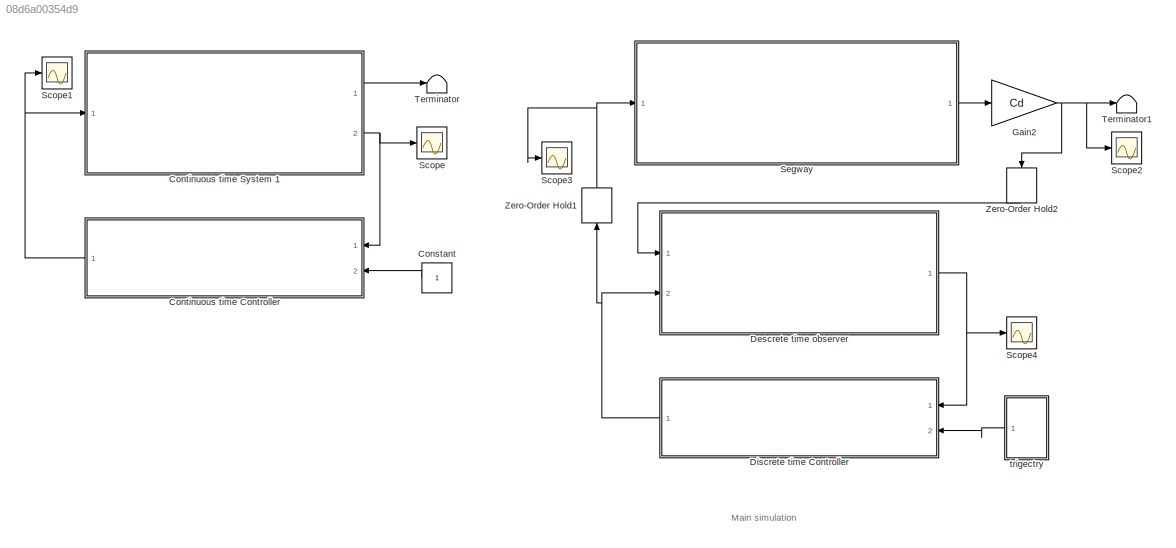
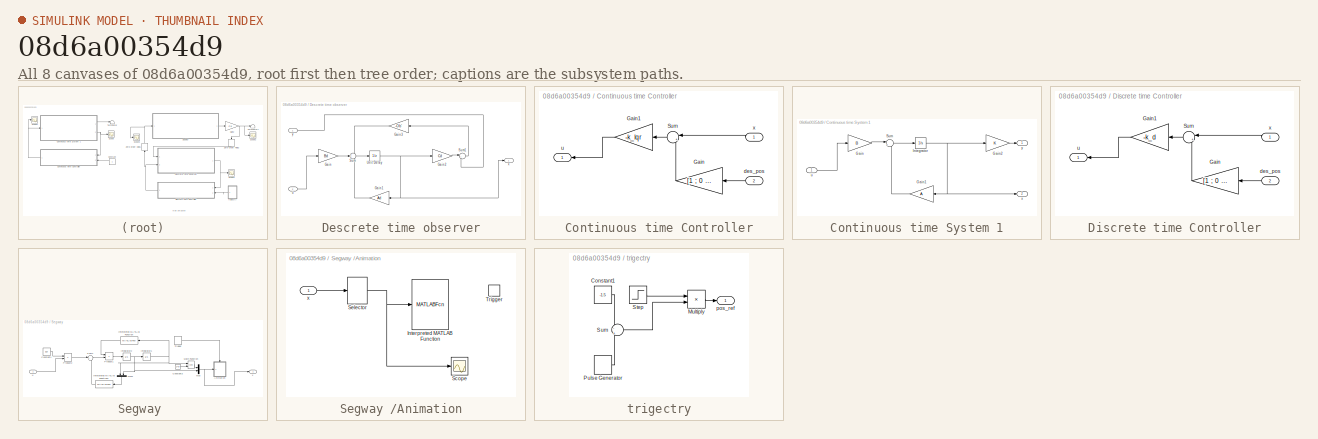
[diagram: thumbnail index - all 8 canvases of the model, root first then tree order]
MODEL slx_08d6a00354d9
KIND model
CONFIG AbsTol = auto
CONFIG EnableMultiTasking = off
CONFIG FixedStep = auto
CONFIG MaxStep = auto
CONFIG MinStep = auto
CONFIG RelTol = 1e-3
CONFIG SampleTimeConstraint = Unconstrained
CONFIG Solver = VariableStepAuto
CONFIG SolverName = VariableStepAuto
CONFIG StartTime = 0.0
CONFIG StopTime = 20
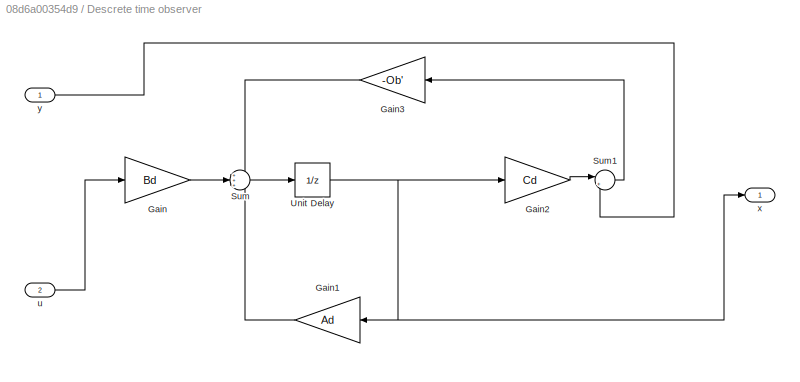
BLOCK [SubSystem]  Descrete time observer 
  Ports = [2, 1]
  RequestExecContextInheritance = off
BLOCK [Gain]  Descrete time observer /Gain
  Gain = Bd
  Multiplication = Matrix(K*u)
  OutDataTypeStr = Inherit: Inherit via internal rule
  ParamDataTypeStr = Inherit: Inherit via internal rule
  SaturateOnIntegerOverflow = off
BLOCK [Gain]  Descrete time observer /Gain1
  Gain = Ad
  Multiplication = Matrix(K*u)
  OutDataTypeStr = Inherit: Inherit via internal rule
  ParamDataTypeStr = Inherit: Inherit via internal rule
  SaturateOnIntegerOverflow = off
BLOCK [Gain]  Descrete time observer /Gain2
  Gain = Cd
  Multiplication = Matrix(K*u)
  OutDataTypeStr = Inherit: Inherit via internal rule
  ParamDataTypeStr = Inherit: Inherit via internal rule
  SaturateOnIntegerOverflow = off
BLOCK [Gain]  Descrete time observer /Gain3
  Gain = -Ob'
  Multiplication = Matrix(K*u)
  OutDataTypeStr = Inherit: Inherit via internal rule
  ParamDataTypeStr = Inherit: Inherit via internal rule
  SaturateOnIntegerOverflow = off
BLOCK [Sum]  Descrete time observer /Sum
  IconShape = round
  InputSameDT = off
  Inputs = +++
  OutDataTypeStr = Inherit: Inherit via internal rule
  Ports = [3, 1]
  SaturateOnIntegerOverflow = off
BLOCK [Sum]  Descrete time observer /Sum1
  IconShape = round
  InputSameDT = off
  Inputs = |+-
  OutDataTypeStr = Inherit: Inherit via internal rule
  Ports = [2, 1]
  SaturateOnIntegerOverflow = off
BLOCK [UnitDelay]  Descrete time observer /Unit Delay
  InitialCondition = x0*0
  InputProcessing = Elements as channels (sample based)
  SampleTime = -1
BLOCK [Inport]  Descrete time observer /u
  IconDisplay = Port number
  Port = 2
BLOCK [Outport]  Descrete time observer /x
  IconDisplay = Port number
BLOCK [Inport]  Descrete time observer /y
  IconDisplay = Port number
BLOCK [Constant] Constant
BLOCK [SubSystem] Continuous time Controller
  Ports = [2, 1]
  RequestExecContextInheritance = off
BLOCK [Gain] Continuous time Controller/Gain
  Gain = [1 ; 0 ; 0 ; 0 ]
  OutDataTypeStr = Inherit: Inherit via internal rule
  ParamDataTypeStr = Inherit: Inherit via internal rule
  SaturateOnIntegerOverflow = off
BLOCK [Gain] Continuous time Controller/Gain1
  Gain = -k_lqr
  Multiplication = Matrix(K*u)
  OutDataTypeStr = Inherit: Inherit via internal rule
  ParamDataTypeStr = Inherit: Inherit via internal rule
  SaturateOnIntegerOverflow = off
BLOCK [Sum] Continuous time Controller/Sum
  IconShape = round
  InputSameDT = off
  Inputs = |+-
  OutDataTypeStr = Inherit: Inherit via internal rule
  Ports = [2, 1]
  SaturateOnIntegerOverflow = off
BLOCK [Inport] Continuous time Controller/des_pos
  IconDisplay = Port number
  Port = 2
BLOCK [Outport] Continuous time Controller/u
  IconDisplay = Port number
BLOCK [Inport] Continuous time Controller/x
  IconDisplay = Port number
BLOCK [SubSystem] Continuous time System 1
  Ports = [1, 2]
  RequestExecContextInheritance = off
BLOCK [Gain] Continuous time System 1/Gain
  Gain = B
  Multiplication = Matrix(K*u)
  OutDataTypeStr = Inherit: Inherit via internal rule
  ParamDataTypeStr = Inherit: Inherit via internal rule
  SaturateOnIntegerOverflow = off
BLOCK [Gain] Continuous time System 1/Gain1
  Gain = A
  Multiplication = Matrix(K*u)
  OutDataTypeStr = Inherit: Inherit via internal rule
  ParamDataTypeStr = Inherit: Inherit via internal rule
  SaturateOnIntegerOverflow = off
BLOCK [Gain] Continuous time System 1/Gain2
  OutDataTypeStr = Inherit: Inherit via internal rule
  ParamDataTypeStr = Inherit: Inherit via internal rule
  SaturateOnIntegerOverflow = off
BLOCK [Integrator] Continuous time System 1/Integrator
  InitialCondition = x0
  Ports = [1, 1]
BLOCK [Sum] Continuous time System 1/Sum
  IconShape = round
  InputSameDT = off
  Inputs = |++
  OutDataTypeStr = Inherit: Inherit via internal rule
  Ports = [2, 1]
  SaturateOnIntegerOverflow = off
BLOCK [Inport] Continuous time System 1/u
  IconDisplay = Port number
BLOCK [Outport] Continuous time System 1/x
  IconDisplay = Port number
  Port = 2
BLOCK [Outport] Continuous time System 1/y
  IconDisplay = Port number
BLOCK [SubSystem] Discrete time Controller
  Ports = [2, 1]
  RequestExecContextInheritance = off
BLOCK [Gain] Discrete time Controller/Gain
  Gain = [1 ; 0 ; 0 ; 0 ]
  OutDataTypeStr = Inherit: Inherit via internal rule
  ParamDataTypeStr = Inherit: Inherit via internal rule
  SaturateOnIntegerOverflow = off
BLOCK [Gain] Discrete time Controller/Gain1
  Gain = -k_d
  Multiplication = Matrix(K*u)
  OutDataTypeStr = Inherit: Inherit via internal rule
  ParamDataTypeStr = Inherit: Inherit via internal rule
  SaturateOnIntegerOverflow = off
BLOCK [Sum] Discrete time Controller/Sum
  IconShape = round
  InputSameDT = off
  Inputs = |+-
  OutDataTypeStr = Inherit: Inherit via internal rule
  Ports = [2, 1]
  SaturateOnIntegerOverflow = off
BLOCK [Inport] Discrete time Controller/des_pos
  IconDisplay = Port number
  Port = 2
BLOCK [Outport] Discrete time Controller/u
  IconDisplay = Port number
BLOCK [Inport] Discrete time Controller/x
  IconDisplay = Port number
BLOCK [Gain] Gain2
  Gain = Cd
  Multiplication = Matrix(K*u)
  OutDataTypeStr = Inherit: Inherit via internal rule
  ParamDataTypeStr = Inherit: Inherit via internal rule
  SaturateOnIntegerOverflow = off
BLOCK [Scope] Scope
  Floating = off
  NumInputPorts = 1
  Ports = [1]
  ScopeSpecificationString = Simulink.scopes.TimeScopeBlockCfg('CurrentConfiguration', extmgr.ConfigurationSet(extmgr.Configuration('Core','General UI',true),extmgr.Configuration('Core','Source UI',true),extmgr.Configuration('Sources','WiredSimulink',true),extmgr.Configuration('Visuals','Time Domain',true,'SerializedDisplays',{struct('MinYLimReal','-0.87219','MaxYLimReal','1.20802','YLabelReal','','MinYLimMag','0.00000','MaxY...<+1468ch>
BLOCK [Scope] Scope1
  Floating = off
  NumInputPorts = 1
  Ports = [1]
  ScopeSpecificationString = Simulink.scopes.TimeScopeBlockCfg('CurrentConfiguration', extmgr.ConfigurationSet(extmgr.Configuration('Core','General UI',true),extmgr.Configuration('Core','Source UI',true),extmgr.Configuration('Sources','WiredSimulink',true,'DataLoggingVariableName','ScopeData1'),extmgr.Configuration('Visuals','Time Domain',true,'SerializedDisplays',{struct('MinYLimReal','-26.94465','MaxYLimReal','9.08468','YLa...<+1416ch>
BLOCK [Scope] Scope2
  Floating = off
  NumInputPorts = 1
  Ports = [1]
  ScopeSpecificationString = Simulink.scopes.TimeScopeBlockCfg('CurrentConfiguration', extmgr.ConfigurationSet(extmgr.Configuration('Core','General UI',true),extmgr.Configuration('Core','Source UI',true),extmgr.Configuration('Sources','WiredSimulink',true,'DataLoggingVariableName','ScopeData1'),extmgr.Configuration('Visuals','Time Domain',true,'SerializedDisplays',{struct('MinYLimReal','-1.34232','MaxYLimReal','2.46951','YLab...<+1390ch>
BLOCK [Scope] Scope3
  Floating = off
  NumInputPorts = 1
  Ports = [1]
  ScopeSpecificationString = Simulink.scopes.TimeScopeBlockCfg('CurrentConfiguration', extmgr.ConfigurationSet(extmgr.Configuration('Core','General UI',true),extmgr.Configuration('Core','Source UI',true),extmgr.Configuration('Sources','WiredSimulink',true,'DataLoggingVariableName','ScopeData2'),extmgr.Configuration('Visuals','Time Domain',true,'SerializedDisplays',{struct('MinYLimReal','-13.4731','MaxYLimReal','11.69984','YLa...<+1403ch>
BLOCK [Scope] Scope4
  Floating = off
  NumInputPorts = 1
  Ports = [1]
  ScopeSpecificationString = Simulink.scopes.TimeScopeBlockCfg('CurrentConfiguration', extmgr.ConfigurationSet(extmgr.Configuration('Core','General UI',true),extmgr.Configuration('Core','Source UI',true),extmgr.Configuration('Sources','WiredSimulink',true,'DataLoggingVariableName','ScopeData3'),extmgr.Configuration('Visuals','Time Domain',true,'SerializedDisplays',{struct('MinYLimReal','-2.05109','MaxYLimReal','2.54824','YLab...<+1498ch>
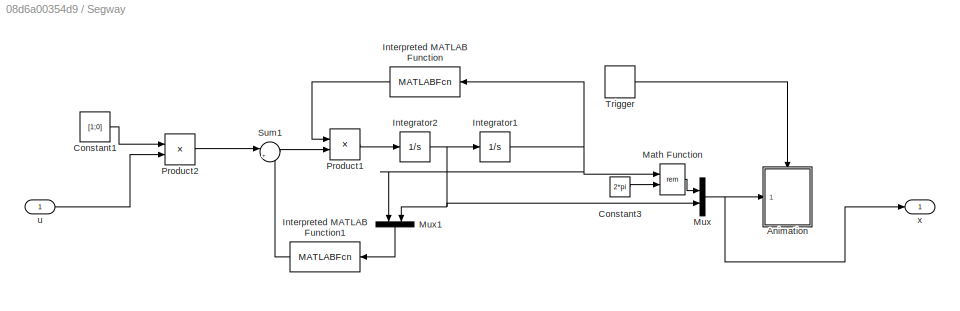
BLOCK [SubSystem] Segway 
  Ports = [1, 1]
  RequestExecContextInheritance = off
BLOCK [SubSystem] Segway /Animation
  Ports = [1, 0, 0, 1]
  RequestExecContextInheritance = off
BLOCK [MATLABFcn] Segway /Animation/Interpreted MATLAB Function
  MATLABFcn = Segway_model
  OutputDimensions = 0
  Ports = [1]
BLOCK [Scope] Segway /Animation/Scope
  Floating = off
  NumInputPorts = 1
  Ports = [1]
  ScopeSpecificationString = C++SS(StrPVP('Location','[1067, 477, 1540, 1054]'),StrPVP('Open','off'),MxPVP('AxesTitles',53,'struct(''axes1'',''%<SignalLabel>'')'),MxPVP('ScopeGraphics',56,'struct(''FigureColor'',''[0.501960784313725 0.501960784313725 0.501960784313725]'',''AxesColor'',''[0 0 0]'',''AxesTickColor'',''[1 1 1]'',''LineColors'',''[1 1 0;1 0 1;0 1 1;1 0 0;0 1 0;0 0 1]'',''LineStyles'',''-|-|-|-|-|-'',''LineWidths'...<+313ch>
BLOCK [Selector] Segway /Animation/Selector
  IndexOptions = Index vector (dialog)
  Indices = [1:2]
  InputPortWidth = 4
  OutputSizes = 1
  Ports = [1, 1]
BLOCK [TriggerPort] Segway /Animation/Trigger
  PortDimensions = 1
  Ports = []
  StatesWhenEnabling = held
  VariantControl = (inherit)
BLOCK [Inport] Segway /Animation/x
  IconDisplay = Port number
BLOCK [Constant] Segway /Constant1
  Value = [1;0]
BLOCK [Constant] Segway /Constant3
  Value = 2*pi
BLOCK [Integrator] Segway /Integrator1
  InitialCondition = x0(1:2)
  Ports = [1, 1]
BLOCK [Integrator] Segway /Integrator2
  InitialCondition = x0(3:4)
  Ports = [1, 1]
BLOCK [MATLABFcn] Segway /Interpreted MATLAB Function
  MATLABFcn = [ 1/(mw + mp - mp*cos(u(2))^2),        cos(u(2))/(L*(mw + mp - mp*cos(u(2))^2)); cos(u(2))/(L*(mw + mp - mp*cos(u(2))^2)), (mw + mp)/(L^2*mp*(mw + mp - mp*cos(u(2))^2))]
  Output1D = off
  Ports = [1, 1]
BLOCK [MATLABFcn] Segway /Interpreted MATLAB Function1
  MATLABFcn = [d1.*u(3)+L.*u(4).^2.*mp.*sin(u(2));d2.*u(4)-L.*g.*mp.*sin(u(2))]
  Ports = [1, 1]
BLOCK [Math] Segway /Math Function
  Operator = rem
  Ports = [2, 1]
BLOCK [Mux] Segway /Mux
  DisplayOption = bar
  Inputs = 2
  Ports = [2, 1]
BLOCK [Mux] Segway /Mux1
  DisplayOption = bar
  Inputs = 2
  Ports = [2, 1]
BLOCK [Product] Segway /Product1
  InputSameDT = off
  Multiplication = Matrix(*)
  OutDataTypeStr = Inherit: Inherit via internal rule
  Ports = [2, 1]
  RndMeth = Floor
  SaturateOnIntegerOverflow = off
BLOCK [Product] Segway /Product2
  InputSameDT = off
  Multiplication = Matrix(*)
  OutDataTypeStr = Inherit: Inherit via internal rule
  Ports = [2, 1]
  RndMeth = Floor
  SaturateOnIntegerOverflow = off
BLOCK [Sum] Segway /Sum1
  IconShape = round
  InputSameDT = off
  Inputs = |+-
  OutDataTypeStr = Inherit: Inherit via internal rule
  Ports = [2, 1]
  SaturateOnIntegerOverflow = off
BLOCK [DiscretePulseGenerator] Segway /Trigger
  Period = 0.1
  Ports = [0, 1]
  PulseType = Time based
  PulseWidth = 50
BLOCK [Inport] Segway /u
  IconDisplay = Port number
BLOCK [Outport] Segway /x
  IconDisplay = Port number
BLOCK [Terminator] Terminator
BLOCK [Terminator] Terminator1
BLOCK [ZeroOrderHold] Zero-Order Hold1
  SampleTime = Ts
BLOCK [ZeroOrderHold] Zero-Order Hold2
  SampleTime = Ts
BLOCK [SubSystem] trigectry
  Ports = [0, 1]
  RequestExecContextInheritance = off
BLOCK [Constant] trigectry/Constant1
  Value = -1.5
BLOCK [Product] trigectry/Multiply
  InputSameDT = off
  OutDataTypeStr = Inherit: Inherit via internal rule
  Ports = [2, 1]
  RndMeth = Floor
  SaturateOnIntegerOverflow = off
BLOCK [DiscretePulseGenerator] trigectry/Pulse Generator
  Period = 5
  Ports = [0, 1]
  PulseType = Time based
  PulseWidth = 25
BLOCK [Step] trigectry/Step
  SampleTime = 0
  Time = 5
BLOCK [Sum] trigectry/Sum
  IconShape = round
  InputSameDT = off
  Inputs = -|+
  OutDataTypeStr = Inherit: Inherit via internal rule
  Ports = [2, 1]
  SaturateOnIntegerOverflow = off
BLOCK [Outport] trigectry/pos_ref
  IconDisplay = Port number
ANNOTATION (root): Main simulation
LINE  Descrete time observer /Gain1:1 ->  Descrete time observer /Sum:3
LINE  Descrete time observer /Gain2:1 ->  Descrete time observer /Sum1:1
LINE  Descrete time observer /Gain3:1 ->  Descrete time observer /Sum:1
LINE  Descrete time observer /Gain:1 ->  Descrete time observer /Sum:2
LINE  Descrete time observer /Sum1:1 ->  Descrete time observer /Gain3:1
LINE  Descrete time observer /Sum:1 ->  Descrete time observer /Unit Delay:1
NET  Descrete time observer /Unit Delay:1 ->  Descrete time observer /Gain1:1,  Descrete time observer /Gain2:1,  Descrete time observer /x:1
LINE  Descrete time observer /u:1 ->  Descrete time observer /Gain:1
LINE  Descrete time observer /y:1 ->  Descrete time observer /Sum1:2
NET  Descrete time observer :1 -> Discrete time Controller:1, Scope4:1
LINE Constant:1 -> Continuous time Controller:2
LINE Continuous time Controller/Gain1:1 -> Continuous time Controller/u:1
LINE Continuous time Controller/Gain:1 -> Continuous time Controller/Sum:2
LINE Continuous time Controller/Sum:1 -> Continuous time Controller/Gain1:1
LINE Continuous time Controller/des_pos:1 -> Continuous time Controller/Gain:1
LINE Continuous time Controller/x:1 -> Continuous time Controller/Sum:1
NET Continuous time Controller:1 -> Continuous time System 1:1, Scope1:1
LINE Continuous time System 1/Gain1:1 -> Continuous time System 1/Sum:2
LINE Continuous time System 1/Gain2:1 -> Continuous time System 1/y:1
LINE Continuous time System 1/Gain:1 -> Continuous time System 1/Sum:1
NET Continuous time System 1/Integrator:1 -> Continuous time System 1/Gain1:1, Continuous time System 1/Gain2:1, Continuous time System 1/x:1
LINE Continuous time System 1/Sum:1 -> Continuous time System 1/Integrator:1
LINE Continuous time System 1/u:1 -> Continuous time System 1/Gain:1
LINE Continuous time System 1:1 -> Terminator:1
NET Continuous time System 1:2 -> Continuous time Controller:1, Scope:1
LINE Discrete time Controller/Gain1:1 -> Discrete time Controller/u:1
LINE Discrete time Controller/Gain:1 -> Discrete time Controller/Sum:2
LINE Discrete time Controller/Sum:1 -> Discrete time Controller/Gain1:1
LINE Discrete time Controller/des_pos:1 -> Discrete time Controller/Gain:1
LINE Discrete time Controller/x:1 -> Discrete time Controller/Sum:1
NET Discrete time Controller:1 ->  Descrete time observer :2, Zero-Order Hold1:1
NET Gain2:1 -> Scope2:1, Terminator1:1, Zero-Order Hold2:1
NET Segway /Animation/Selector:1 -> Segway /Animation/Interpreted MATLAB Function:1, Segway /Animation/Scope:1
LINE Segway /Animation/x:1 -> Segway /Animation/Selector:1
LINE Segway /Constant1:1 -> Segway /Product2:1
LINE Segway /Constant3:1 -> Segway /Math Function:2
NET Segway /Integrator1:1 -> Segway /Interpreted MATLAB Function:1, Segway /Math Function:1, Segway /Mux1:1
NET Segway /Integrator2:1 -> Segway /Integrator1:1, Segway /Mux1:2, Segway /Mux:2
LINE Segway /Interpreted MATLAB Function1:1 -> Segway /Sum1:2
LINE Segway /Interpreted MATLAB Function:1 -> Segway /Product1:1
LINE Segway /Math Function:1 -> Segway /Mux:1
LINE Segway /Mux1:1 -> Segway /Interpreted MATLAB Function1:1
NET Segway /Mux:1 -> Segway /Animation:1, Segway /x:1
LINE Segway /Product1:1 -> Segway /Integrator2:1
LINE Segway /Product2:1 -> Segway /Sum1:1
LINE Segway /Sum1:1 -> Segway /Product1:2
LINE Segway /Trigger:1 -> Segway /Animation:trigger
LINE Segway /u:1 -> Segway /Product2:2
LINE Segway :1 -> Gain2:1
NET Zero-Order Hold1:1 -> Scope3:1, Segway :1
LINE Zero-Order Hold2:1 ->  Descrete time observer :1
LINE trigectry/Constant1:1 -> trigectry/Sum:1
LINE trigectry/Multiply:1 -> trigectry/pos_ref:1
LINE trigectry/Pulse Generator:1 -> trigectry/Sum:2
LINE trigectry/Step:1 -> trigectry/Multiply:1
LINE trigectry/Sum:1 -> trigectry/Multiply:2
LINE trigectry:1 -> Discrete time Controller:2
note: NET lines group one-source signal fan-out (src -> all destinations, sorted); 1:1 wires keep LINE
